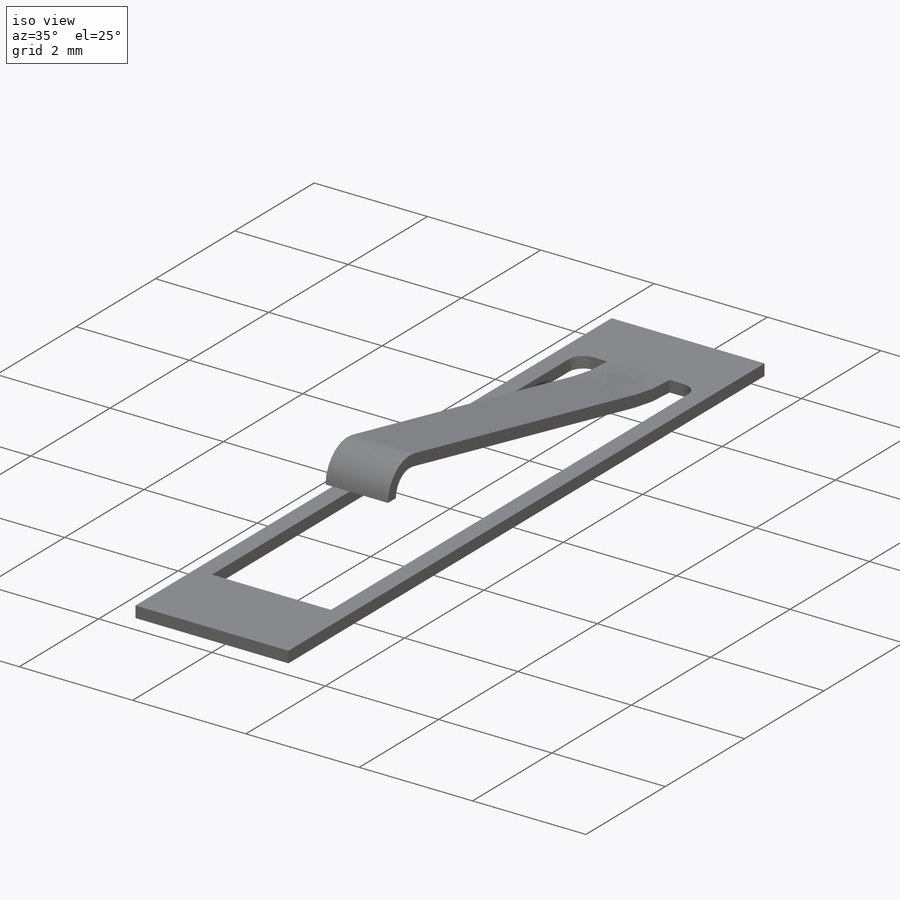
[diagram: iso view]
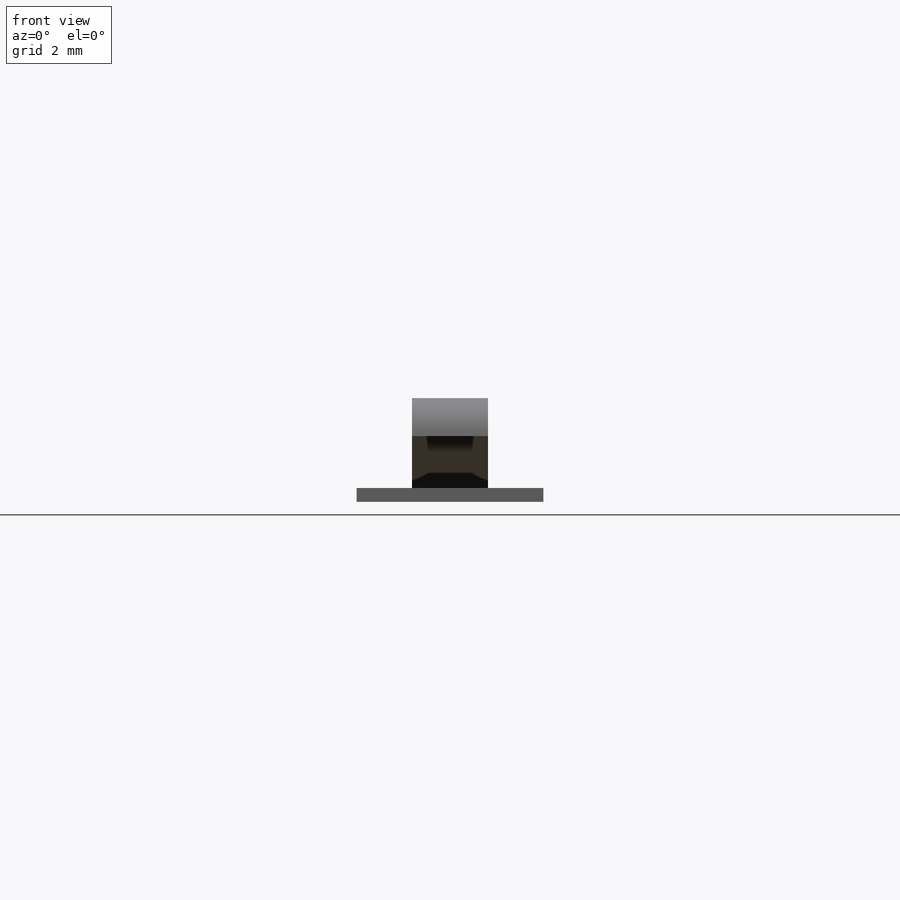
[diagram: front view]
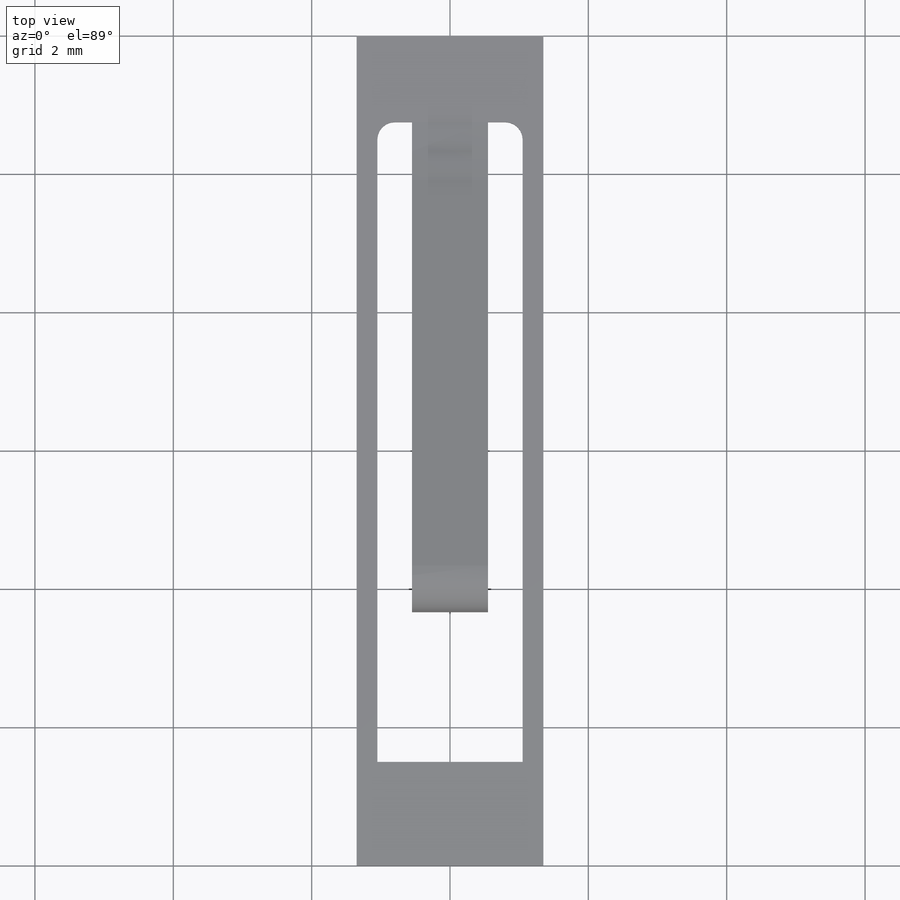
[diagram: top view]
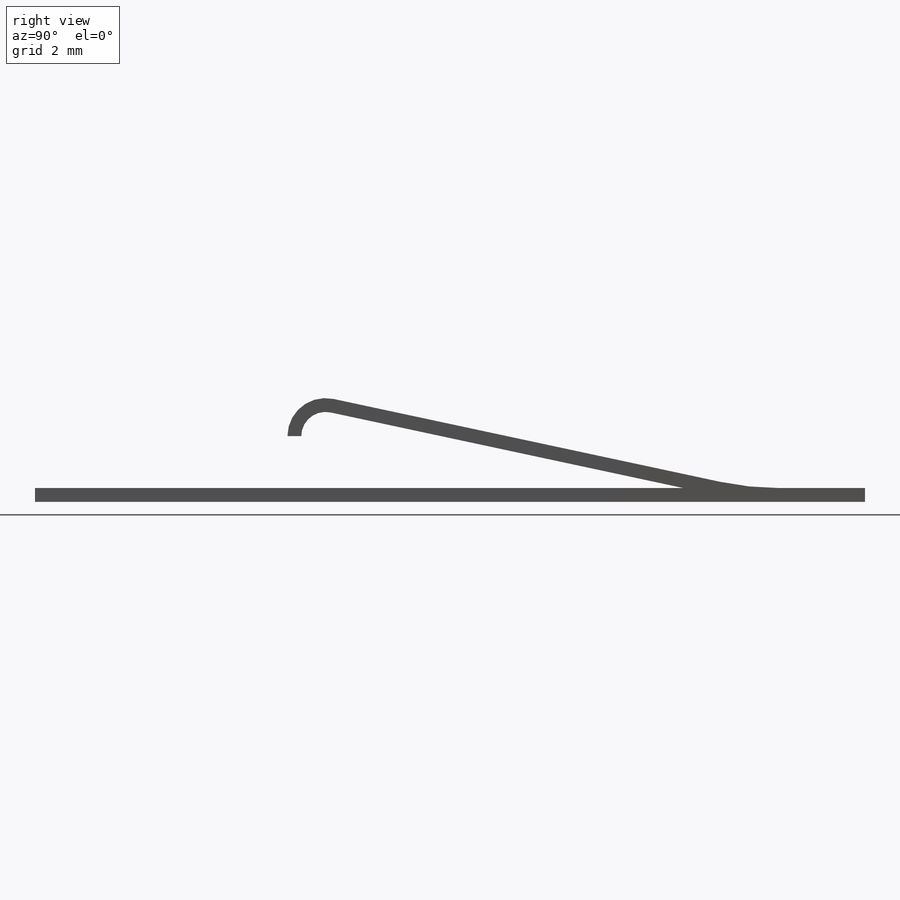
[diagram: right view]
SOLIDWORKS PART (.sldprt)
format: sldprt  version: not decoded by parser v0  size: 354,816 bytes
history: native  units: mm
features: sketch x5, extrude x2, material x1, cut_extrude x1 (+11 scaffold rows collapsed)
feature tree (20):
  scaffold x11  (default folders/planes/origin — collapsed)
  material  "Material <not specified>"
  sketch  "Sketch1"  dims[D1=12.0mm D2=2.7mm D3=7.8mm D4=1.1mm D5=0.3mm D6=1.1mm D7=1.5mm]
  extrude  "Boss-Extrude1"  Depth=0.2mm
  sketch  "Sketch2"
  cut_extrude  "Cut-Extrude1"  [1 undecoded]
  sketch  "Sketch3"  dims[c1.D2=4.0mm c1.D3=~0.770372mm c1.D1=1.5mm c2.D3=0.2mm]
  extrude  "Boss-Extrude2"  [1 undecoded]
  sketch  "Sketch4"  dims[D1=3.0mm D2=12.4mm D3=7.6mm]
  sketch  "Sketch5"  dims[D1=7.5mm D2=2.5mm]
decode coverage: 5 of 8 modeling features carry decoded parameters
note: ~ marks probable driven/reference dimensions
note: 2 parameter values undecoded
note: suppression state not decoded; provenance and decode notes live in map.json
